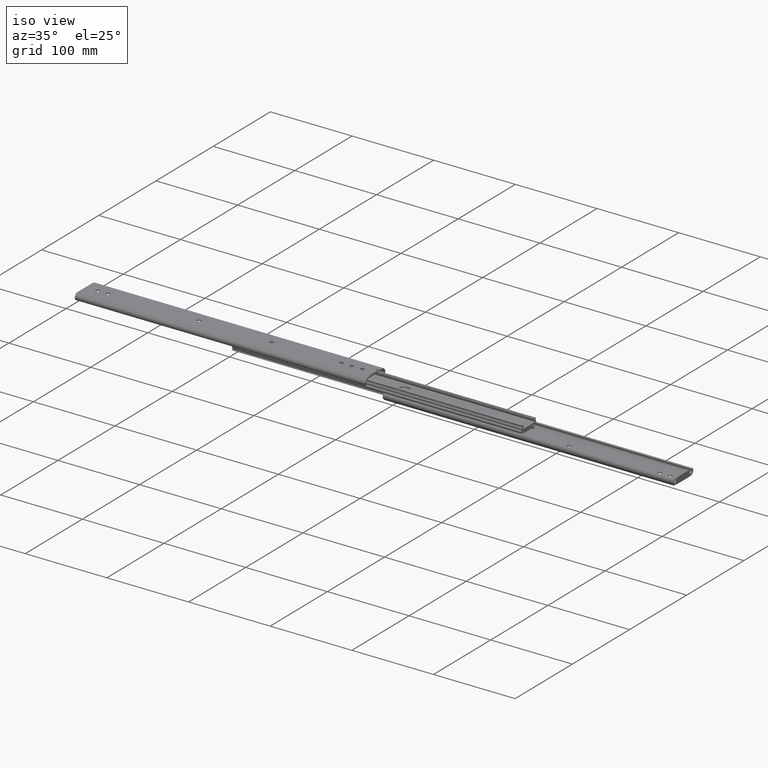
[diagram: clean part render]
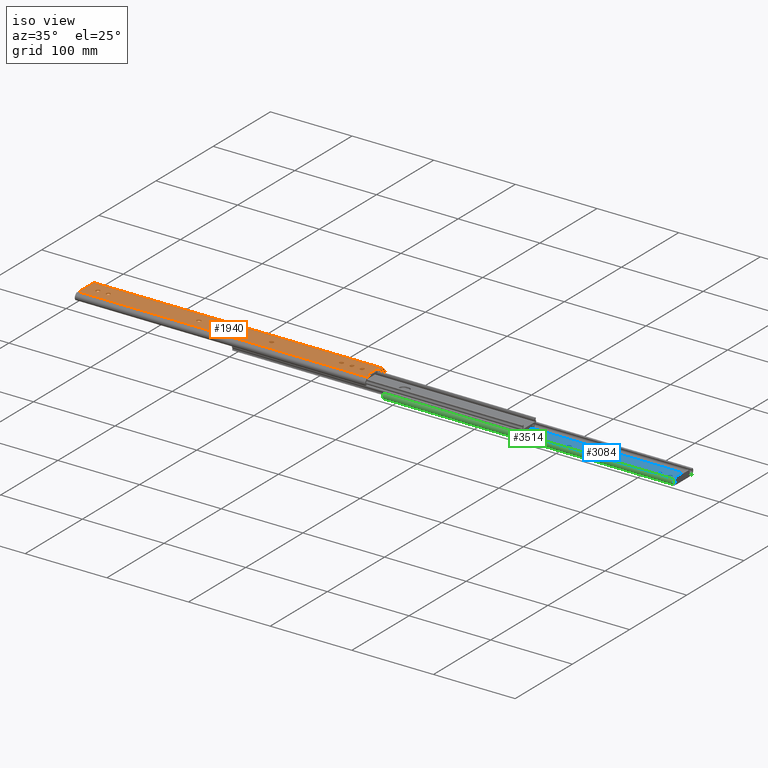
[diagram: same view with three faces highlighted in distinct colors, each labeled with its STEP entity id]
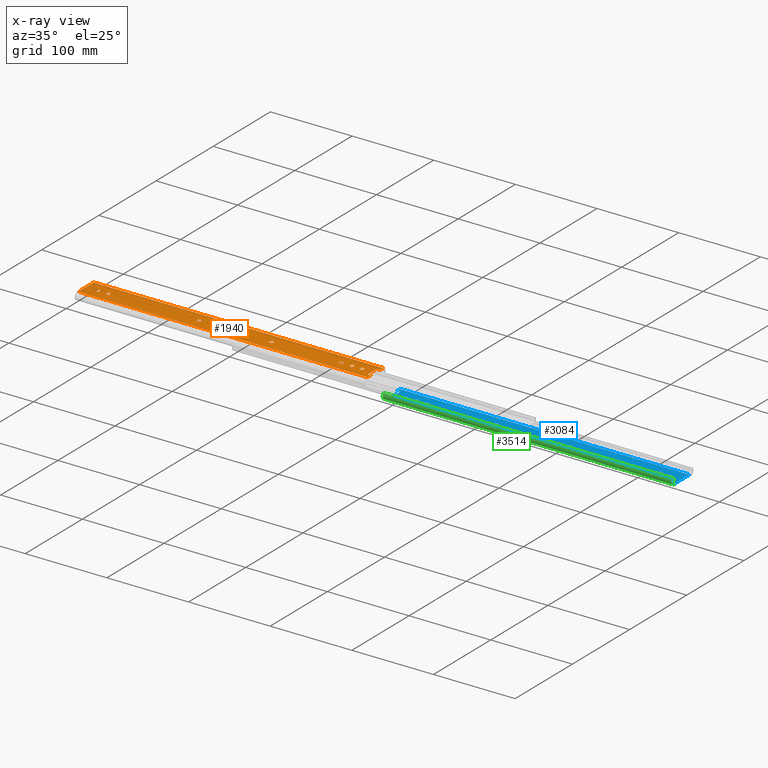
[diagram: x-ray of the same camera — body ghosted, the three highlighted faces saturated]
A machine part, iso view with three faces highlighted in distinct colors.
The next image is the same camera in x-ray (body ghosted, the three faces saturated) — at least one of them is partly hidden behind the body in this view.
Their STEP definitions:

[orange] entity #1940 — the highlighted planar face has unit normal (0, 0, -1).
#27 = VERTEX_POINT ( 'NONE', #2260 ) ;
#34 = EDGE_CURVE ( 'NONE', #4591, #3769, #3620, .T. ) ;
#38 = DIRECTION ( 'NONE',  ( 1.000000000000000000, 0.0000000000000000000, 0.0000000000000000000 ) ) ;
#41 = VERTEX_POINT ( 'NONE', #144 ) ;
#49 = EDGE_CURVE ( 'NONE', #2470, #41, #1738, .T. ) ;
#52 = ORIENTED_EDGE ( 'NONE', *, *, #3562, .T. ) ;
#82 = CARTESIAN_POINT ( 'NONE',  ( 40.89999999999999100, -2.250000000000001800, -4.792173602385929600E-014 ) ) ;
#103 = EDGE_LOOP ( 'NONE', ( #2430, #2544, #2094, #52 ) ) ;
#116 = CARTESIAN_POINT ( 'NONE',  ( 215.4999999999999400, 2.249999999999967600, -4.792173602385929600E-014 ) ) ;
#118 = CIRCLE ( 'NONE', #4613, 2.250000000000001800 ) ;
#122 = DIRECTION ( 'NONE',  ( 0.0000000000000000000, 0.0000000000000000000, 1.000000000000000000 ) ) ;
#132 = ORIENTED_EDGE ( 'NONE', *, *, #2049, .T. ) ;
#135 = LINE ( 'NONE', #768, #1920 ) ;
#142 = DIRECTION ( 'NONE',  ( 1.000000000000000000, 0.0000000000000000000, 0.0000000000000000000 ) ) ;
#144 = CARTESIAN_POINT ( 'NONE',  ( 18.15000000000000600, 0.3999999999999995800, -4.792173602385929600E-014 ) ) ;
#145 = EDGE_CURVE ( 'NONE', #3769, #2548, #910, .T. ) ;
#154 = DIRECTION ( 'NONE',  ( -0.0000000000000000000, 1.000000000000000000, -0.0000000000000000000 ) ) ;
#162 = CARTESIAN_POINT ( 'NONE',  ( 1.708415533803517000E-015, -8.000000000000000000, 7.958043946043602500E-014 ) ) ;
#179 = CARTESIAN_POINT ( 'NONE',  ( 216.3000000000000700, -2.250000000000032000, -1.348552589821912300E-014 ) ) ;
#187 = LINE ( 'NONE', #162, #2885 ) ;
#201 = DIRECTION ( 'NONE',  ( 1.000000000000000000, 0.0000000000000000000, 0.0000000000000000000 ) ) ;
#240 = LINE ( 'NONE', #1406, #1060 ) ;
#261 = VERTEX_POINT ( 'NONE', #3149 ) ;
#267 = VECTOR ( 'NONE', #1349, 1000.000000000000000 ) ;
#269 = LINE ( 'NONE', #504, #3929 ) ;
#271 = CARTESIAN_POINT ( 'NONE',  ( 13.64999999999999500, -0.3999999999999964700, -2.397426826350011400E-015 ) ) ;
#272 = CARTESIAN_POINT ( 'NONE',  ( 13.65000000000000000, 0.3999999999999968000, -4.792173602385929600E-014 ) ) ;
#287 = ORIENTED_EDGE ( 'NONE', *, *, #2496, .T. ) ;
#297 = DIRECTION ( 'NONE',  ( 1.000000000000000000, 0.0000000000000000000, 0.0000000000000000000 ) ) ;
#308 = EDGE_CURVE ( 'NONE', #4332, #2753, #2846, .T. ) ;
#345 = EDGE_CURVE ( 'NONE', #1980, #1074, #3303, .T. ) ;
#350 = VECTOR ( 'NONE', #1669, 1000.000000000000000 ) ;
#357 = VECTOR ( 'NONE', #1564, 1000.000000000000000 ) ;
#360 = FACE_OUTER_BOUND ( 'NONE', #380, .T. ) ;
#373 = AXIS2_PLACEMENT_3D ( 'NONE', #1333, #3314, #4492 ) ;
#380 = EDGE_LOOP ( 'NONE', ( #1472, #1113, #2171, #2444, #402, #1570, #3610, #1292, #2714, #1176, #2307, #557 ) ) ;
#386 = ORIENTED_EDGE ( 'NONE', *, *, #1433, .T. ) ;
#389 = AXIS2_PLACEMENT_3D ( 'NONE', #4409, #2274, #142 ) ;
#402 = ORIENTED_EDGE ( 'NONE', *, *, #4611, .T. ) ;
#406 = VECTOR ( 'NONE', #1453, 1000.000000000000000 ) ;
#414 = CIRCLE ( 'NONE', #1234, 2.249999999999998700 ) ;
#429 = EDGE_CURVE ( 'NONE', #3143, #4291, #2051, .T. ) ;
#446 = EDGE_CURVE ( 'NONE', #2548, #2888, #1921, .T. ) ;
#498 = EDGE_CURVE ( 'NONE', #1980, #4313, #2636, .T. ) ;
#504 = CARTESIAN_POINT ( 'NONE',  ( 40.89999999999999100, 2.249999999999998200, -4.792173602385929600E-014 ) ) ;
#515 = CIRCLE ( 'NONE', #2166, 2.250000000000001800 ) ;
#517 = CARTESIAN_POINT ( 'NONE',  ( 218.5499999999999800, 3.216173613727295700E-014, -4.792173602385929600E-014 ) ) ;
#523 = DIRECTION ( 'NONE',  ( 0.0000000000000000000, 0.0000000000000000000, 1.000000000000000000 ) ) ;
#529 = CIRCLE ( 'NONE', #3337, 2.250000000000029800 ) ;
#557 = ORIENTED_EDGE ( 'NONE', *, *, #2230, .T. ) ;
#582 = ORIENTED_EDGE ( 'NONE', *, *, #1809, .T. ) ;
#607 = CARTESIAN_POINT ( 'NONE',  ( 329.2500000000000600, -0.3999999999999233600, -4.792173602385929600E-014 ) ) ;
#609 = EDGE_CURVE ( 'NONE', #2888, #4591, #414, .T. ) ;
#611 = VERTEX_POINT ( 'NONE', #1897 ) ;
#613 = DIRECTION ( 'NONE',  ( 1.000000000000000000, 0.0000000000000000000, 0.0000000000000000000 ) ) ;
#625 = CARTESIAN_POINT ( 'NONE',  ( 215.4999999999999400, 2.249999999999967600, -4.792173602385929600E-014 ) ) ;
#627 = ORIENTED_EDGE ( 'NONE', *, *, #3643, .T. ) ;
#641 = CIRCLE ( 'NONE', #2546, 2.250000000000001800 ) ;
#656 = EDGE_CURVE ( 'NONE', #4313, #1888, #2893, .T. ) ;
#661 = AXIS2_PLACEMENT_3D ( 'NONE', #2906, #788, #3274 ) ;
#683 = LINE ( 'NONE', #1397, #1523 ) ;
#717 = CARTESIAN_POINT ( 'NONE',  ( 353.9220781010617400, -13.34999999999963900, 7.958043946043602500E-014 ) ) ;
#753 = CARTESIAN_POINT ( 'NONE',  ( 3.799999999999999400, 8.000000000000000000, 7.958043946043602500E-014 ) ) ;
#768 = CARTESIAN_POINT ( 'NONE',  ( 329.2500000000000600, 0.4000000000000162900, -4.792173602385929600E-014 ) ) ;
#779 = EDGE_CURVE ( 'NONE', #4152, #1888, #3197, .T. ) ;
#788 = DIRECTION ( 'NONE',  ( 0.0000000000000000000, 0.0000000000000000000, 1.000000000000000000 ) ) ;
#847 = VECTOR ( 'NONE', #1894, 1000.000000000000000 ) ;
#886 = ORIENTED_EDGE ( 'NONE', *, *, #4241, .T. ) ;
#898 = DIRECTION ( 'NONE',  ( 1.000000000000000000, 0.0000000000000000000, 0.0000000000000000000 ) ) ;
#903 = DIRECTION ( 'NONE',  ( 1.000000000000000000, 0.0000000000000000000, 0.0000000000000000000 ) ) ;
#904 = LINE ( 'NONE', #1243, #3624 ) ;
#908 = VERTEX_POINT ( 'NONE', #179 ) ;
#910 = CIRCLE ( 'NONE', #4605, 2.250000000000001800 ) ;
#921 = CIRCLE ( 'NONE', #3367, 2.250000000000029800 ) ;
#975 = DIRECTION ( 'NONE',  ( 0.0000000000000000000, 0.0000000000000000000, 1.000000000000000000 ) ) ;
#982 = EDGE_CURVE ( 'NONE', #2867, #3143, #3233, .T. ) ;
#983 = ORIENTED_EDGE ( 'NONE', *, *, #3441, .T. ) ;
#993 = VERTEX_POINT ( 'NONE', #1083 ) ;
#1019 = CIRCLE ( 'NONE', #1035, 2.250000000000001800 ) ;
#1027 = VECTOR ( 'NONE', #2296, 1000.000000000000000 ) ;
#1035 = AXIS2_PLACEMENT_3D ( 'NONE', #3110, #122, #2595 ) ;
#1060 = VECTOR ( 'NONE', #3534, 1000.000000000000000 ) ;
#1061 = DIRECTION ( 'NONE',  ( 0.0000000000000000000, 0.0000000000000000000, 1.000000000000000000 ) ) ;
#1074 = VERTEX_POINT ( 'NONE', #3266 ) ;
#1083 = CARTESIAN_POINT ( 'NONE',  ( 329.2500000000000600, 0.4000000000000162900, -4.792173602385929600E-014 ) ) ;
#1100 = ORIENTED_EDGE ( 'NONE', *, *, #446, .T. ) ;
#1113 = ORIENTED_EDGE ( 'NONE', *, *, #1506, .T. ) ;
#1115 = AXIS2_PLACEMENT_3D ( 'NONE', #3654, #1539, #4017 ) ;
#1120 = ORIENTED_EDGE ( 'NONE', *, *, #4593, .T. ) ;
#1149 = ORIENTED_EDGE ( 'NONE', *, *, #308, .T. ) ;
#1167 = EDGE_CURVE ( 'NONE', #4152, #2157, #683, .T. ) ;
#1176 = ORIENTED_EDGE ( 'NONE', *, *, #1167, .T. ) ;
#1198 = VERTEX_POINT ( 'NONE', #3604 ) ;
#1227 = EDGE_LOOP ( 'NONE', ( #3941, #2624, #132, #386, #2633 ) ) ;
#1234 = AXIS2_PLACEMENT_3D ( 'NONE', #2246, #3606, #1434 ) ;
#1236 = LINE ( 'NONE', #2944, #1244 ) ;
#1243 = CARTESIAN_POINT ( 'NONE',  ( 0.0000000000000000000, 0.0000000000000000000, 0.0000000000000000000 ) ) ;
#1244 = VECTOR ( 'NONE', #2985, 1000.000000000000000 ) ;
#1257 = ORIENTED_EDGE ( 'NONE', *, *, #49, .T. ) ;
#1268 = ORIENTED_EDGE ( 'NONE', *, *, #34, .T. ) ;
#1272 = CARTESIAN_POINT ( 'NONE',  ( 127.4000000000000200, 2.249999999999992900, -4.792173602385929600E-014 ) ) ;
#1292 = ORIENTED_EDGE ( 'NONE', *, *, #656, .T. ) ;
#1300 = CARTESIAN_POINT ( 'NONE',  ( 215.4999999999999400, -4.708513536440862100E-031, -4.792173602385929600E-014 ) ) ;
#1303 = CIRCLE ( 'NONE', #2866, 2.250000000000001800 ) ;
#1313 = FACE_BOUND ( 'NONE', #1765, .T. ) ;
#1315 = VERTEX_POINT ( 'NONE', #3642 ) ;
#1317 = CARTESIAN_POINT ( 'NONE',  ( 341.9500000000001000, 0.4000000000000177300, -4.792173602385929600E-014 ) ) ;
#1326 = DIRECTION ( 'NONE',  ( 1.000000000000000000, 0.0000000000000000000, 0.0000000000000000000 ) ) ;
#1333 = CARTESIAN_POINT ( 'NONE',  ( 327.0000000000000600, -0.3999999999999245800, -4.792173602385929600E-014 ) ) ;
#1341 = DIRECTION ( 'NONE',  ( 1.000000000000000000, 0.0000000000000000000, 0.0000000000000000000 ) ) ;
#1349 = DIRECTION ( 'NONE',  ( -1.000000000000000000, -0.0000000000000000000, -0.0000000000000000000 ) ) ;
#1351 = AXIS2_PLACEMENT_3D ( 'NONE', #4192, #2059, #4545 ) ;
#1396 = VERTEX_POINT ( 'NONE', #1272 ) ;
#1397 = CARTESIAN_POINT ( 'NONE',  ( 355.6000000000000200, -13.34999999999964600, 8.001412032943022700E-014 ) ) ;
#1406 = CARTESIAN_POINT ( 'NONE',  ( 337.4500000000000500, 0.4000000000000705200, -4.792173602385929600E-014 ) ) ;
#1418 = LINE ( 'NONE', #1890, #357 ) ;
#1420 = FACE_BOUND ( 'NONE', #103, .T. ) ;
#1433 = EDGE_CURVE ( 'NONE', #908, #3795, #515, .T. ) ;
#1434 = DIRECTION ( 'NONE',  ( 1.000000000000000000, 0.0000000000000000000, 0.0000000000000000000 ) ) ;
#1453 = DIRECTION ( 'NONE',  ( -1.355252715606880500E-016, 1.000000000000000000, -0.0000000000000000000 ) ) ;
#1461 = CARTESIAN_POINT ( 'NONE',  ( 355.1000000000007600, -12.79999999999970100, 7.958043946043602500E-014 ) ) ;
#1472 = ORIENTED_EDGE ( 'NONE', *, *, #3625, .T. ) ;
#1506 = EDGE_CURVE ( 'NONE', #4123, #2867, #1236, .T. ) ;
#1523 = VECTOR ( 'NONE', #2815, 1000.000000000000000 ) ;
#1529 = CARTESIAN_POINT ( 'NONE',  ( 324.7500000000000600, 0.4000000000000699100, -4.792173602385929600E-014 ) ) ;
#1535 = VERTEX_POINT ( 'NONE', #271 ) ;
#1539 = DIRECTION ( 'NONE',  ( 0.0000000000000000000, 0.0000000000000000000, 1.000000000000000000 ) ) ;
#1549 = CARTESIAN_POINT ( 'NONE',  ( 341.9500000000001000, -0.3999999999999219200, -4.792173602385929600E-014 ) ) ;
#1560 = VERTEX_POINT ( 'NONE', #1647 ) ;
#1564 = DIRECTION ( 'NONE',  ( 0.0000000000000000000, 1.000000000000000000, 5.993567065875081600E-015 ) ) ;
#1568 = CARTESIAN_POINT ( 'NONE',  ( 126.5999999999999900, 2.249999999999992900, -4.792173602385929600E-014 ) ) ;
#1570 = ORIENTED_EDGE ( 'NONE', *, *, #345, .F. ) ;
#1600 = EDGE_CURVE ( 'NONE', #1535, #2470, #4481, .T. ) ;
#1615 = ORIENTED_EDGE ( 'NONE', *, *, #1688, .T. ) ;
#1637 = ORIENTED_EDGE ( 'NONE', *, *, #145, .T. ) ;
#1647 = CARTESIAN_POINT ( 'NONE',  ( 129.6500000000000100, 1.230082464744604100E-014, -4.792173602385929600E-014 ) ) ;
#1665 = VERTEX_POINT ( 'NONE', #3731 ) ;
#1669 = DIRECTION ( 'NONE',  ( -0.0000000000000000000, 1.000000000000000000, -0.0000000000000000000 ) ) ;
#1688 = EDGE_CURVE ( 'NONE', #3965, #1535, #2466, .T. ) ;
#1690 = CARTESIAN_POINT ( 'NONE',  ( 13.65000000000000000, 0.3999999999999968000, -4.792173602385929600E-014 ) ) ;
#1700 = LINE ( 'NONE', #1994, #4315 ) ;
#1705 = VECTOR ( 'NONE', #1873, 1000.000000000000000 ) ;
#1716 = CARTESIAN_POINT ( 'NONE',  ( 43.95000000000000300, 3.337652803933819400E-015, -4.792173602385929600E-014 ) ) ;
#1729 = EDGE_CURVE ( 'NONE', #4514, #1198, #1303, .T. ) ;
#1730 = EDGE_CURVE ( 'NONE', #2207, #4565, #3186, .T. ) ;
#1732 = CARTESIAN_POINT ( 'NONE',  ( 30.85000000000000100, 0.4000000000000040700, -4.792173602385929600E-014 ) ) ;
#1735 = CIRCLE ( 'NONE', #1351, 2.250000000000029800 ) ;
#1738 = LINE ( 'NONE', #3309, #4583 ) ;
#1756 = LINE ( 'NONE', #1832, #2489 ) ;
#1765 = EDGE_LOOP ( 'NONE', ( #1257, #1120, #1615, #4027 ) ) ;
#1788 = VERTEX_POINT ( 'NONE', #2335 ) ;
#1792 = LINE ( 'NONE', #3863, #847 ) ;
#1804 = DIRECTION ( 'NONE',  ( 0.0000000000000000000, 0.0000000000000000000, 1.000000000000000000 ) ) ;
#1807 = AXIS2_PLACEMENT_3D ( 'NONE', #2085, #4571, #2441 ) ;
#1809 = EDGE_CURVE ( 'NONE', #1396, #4514, #1986, .T. ) ;
#1832 = CARTESIAN_POINT ( 'NONE',  ( 3.799999999999999400, 8.000000000000000000, 7.958043946043602500E-014 ) ) ;
#1840 = DIRECTION ( 'NONE',  ( -0.0000000000000000000, 1.000000000000000000, -0.0000000000000000000 ) ) ;
#1873 = DIRECTION ( 'NONE',  ( 0.0000000000000000000, -1.000000000000000000, 0.0000000000000000000 ) ) ;
#1888 = VERTEX_POINT ( 'NONE', #2363 ) ;
#1890 = CARTESIAN_POINT ( 'NONE',  ( 0.0000000000000000000, 0.0000000000000000000, 0.0000000000000000000 ) ) ;
#1894 = DIRECTION ( 'NONE',  ( 1.000000000000000000, 0.0000000000000000000, 0.0000000000000000000 ) ) ;
#1897 = CARTESIAN_POINT ( 'NONE',  ( 337.4500000000000500, 0.4000000000000705200, -4.792173602385929600E-014 ) ) ;
#1903 = DIRECTION ( 'NONE',  ( 0.0000000000000000000, 0.0000000000000000000, 1.000000000000000000 ) ) ;
#1913 = VERTEX_POINT ( 'NONE', #82 ) ;
#1918 = DIRECTION ( 'NONE',  ( 0.0000000000000000000, -1.000000000000000000, 0.0000000000000000000 ) ) ;
#1920 = VECTOR ( 'NONE', #1840, 1000.000000000000000 ) ;
#1921 = LINE ( 'NONE', #2410, #2967 ) ;
#1933 = AXIS2_PLACEMENT_3D ( 'NONE', #4178, #4437, #903 ) ;
#1940 = ADVANCED_FACE ( 'NONE', ( #4491, #2373, #4157, #1420, #3198, #2247, #1313, #360 ), #2279, .F. ) ;
#1942 = CARTESIAN_POINT ( 'NONE',  ( 354.0000000000000600, 12.10717967697326500, 7.958043946043602500E-014 ) ) ;
#1951 = CARTESIAN_POINT ( 'NONE',  ( 0.0000000000000000000, -13.34999999999964600, 8.001412032943022700E-014 ) ) ;
#1975 = DIRECTION ( 'NONE',  ( -1.000000000000000000, -0.0000000000000000000, -0.0000000000000000000 ) ) ;
#1980 = VERTEX_POINT ( 'NONE', #4191 ) ;
#1986 = LINE ( 'NONE', #1568, #3765 ) ;
#1994 = CARTESIAN_POINT ( 'NONE',  ( 40.89999999999999100, -2.250000000000001800, -4.792173602385929600E-014 ) ) ;
#2028 = CARTESIAN_POINT ( 'NONE',  ( 0.0000000000000000000, 8.000000000000000000, 7.958043946043602500E-014 ) ) ;
#2029 = CARTESIAN_POINT ( 'NONE',  ( 341.9500000000001000, 0.4000000000000177300, -4.792173602385929600E-014 ) ) ;
#2038 = CARTESIAN_POINT ( 'NONE',  ( 28.60000000000000100, -0.3999999999999991300, -4.792173602385929600E-014 ) ) ;
#2049 = EDGE_CURVE ( 'NONE', #1315, #908, #1792, .T. ) ;
#2051 = LINE ( 'NONE', #2028, #267 ) ;
#2059 = DIRECTION ( 'NONE',  ( 0.0000000000000000000, 0.0000000000000000000, 1.000000000000000000 ) ) ;
#2085 = CARTESIAN_POINT ( 'NONE',  ( 41.70000000000000300, 3.337652803933819400E-015, -4.792173602385929600E-014 ) ) ;
#2094 = ORIENTED_EDGE ( 'NONE', *, *, #2919, .T. ) ;
#2106 = EDGE_CURVE ( 'NONE', #1913, #2277, #1700, .T. ) ;
#2113 = EDGE_CURVE ( 'NONE', #4565, #1315, #641, .T. ) ;
#2131 = CARTESIAN_POINT ( 'NONE',  ( 3.800000000000001600, -6.999999999999999100, 7.958043946043602500E-014 ) ) ;
#2157 = VERTEX_POINT ( 'NONE', #1951 ) ;
#2166 = AXIS2_PLACEMENT_3D ( 'NONE', #4501, #4414, #2402 ) ;
#2171 = ORIENTED_EDGE ( 'NONE', *, *, #982, .T. ) ;
#2200 = VECTOR ( 'NONE', #3957, 1000.000000000000000 ) ;
#2207 = VERTEX_POINT ( 'NONE', #2440 ) ;
#2221 = CARTESIAN_POINT ( 'NONE',  ( 324.7500000000000600, -0.4000000000000691900, -2.397426826350447600E-015 ) ) ;
#2230 = EDGE_CURVE ( 'NONE', #3996, #1665, #187, .T. ) ;
#2246 = CARTESIAN_POINT ( 'NONE',  ( 28.59999999999999800, 0.4000000000000038000, -4.792173602385929600E-014 ) ) ;
#2247 = FACE_BOUND ( 'NONE', #3206, .T. ) ;
#2254 = EDGE_CURVE ( 'NONE', #2277, #2504, #1019, .T. ) ;
#2260 = CARTESIAN_POINT ( 'NONE',  ( 40.89999999999999100, 2.249999999999998200, -4.792173602385929600E-014 ) ) ;
#2274 = DIRECTION ( 'NONE',  ( 0.0000000000000000000, 0.0000000000000000000, 1.000000000000000000 ) ) ;
#2276 = DIRECTION ( 'NONE',  ( -0.0000000000000000000, 1.000000000000000000, -0.0000000000000000000 ) ) ;
#2277 = VERTEX_POINT ( 'NONE', #2625 ) ;
#2278 = CARTESIAN_POINT ( 'NONE',  ( 26.34999999999998400, -0.3999999999999968600, -2.397426826350013700E-015 ) ) ;
#2279 = PLANE ( 'NONE',  #2785 ) ;
#2288 = EDGE_CURVE ( 'NONE', #2157, #3996, #904, .T. ) ;
#2296 = DIRECTION ( 'NONE',  ( -0.0000000000000000000, -1.000000000000000000, -5.993567065875080900E-015 ) ) ;
#2307 = ORIENTED_EDGE ( 'NONE', *, *, #2288, .T. ) ;
#2324 = LINE ( 'NONE', #3595, #2200 ) ;
#2335 = CARTESIAN_POINT ( 'NONE',  ( 127.4000000000000200, -2.250000000000006700, -1.348552589821897300E-014 ) ) ;
#2358 = CIRCLE ( 'NONE', #1807, 2.250000000000001800 ) ;
#2363 = CARTESIAN_POINT ( 'NONE',  ( 354.0000000000000600, -12.10717967697326500, 7.958043946043602500E-014 ) ) ;
#2364 = LINE ( 'NONE', #1317, #350 ) ;
#2371 = CIRCLE ( 'NONE', #389, 2.250000000000001800 ) ;
#2373 = FACE_BOUND ( 'NONE', #3842, .T. ) ;
#2380 = VECTOR ( 'NONE', #2603, 1000.000000000000000 ) ;
#2397 = DIRECTION ( 'NONE',  ( 1.000000000000000000, 0.0000000000000000000, 0.0000000000000000000 ) ) ;
#2398 = ORIENTED_EDGE ( 'NONE', *, *, #1729, .T. ) ;
#2402 = DIRECTION ( 'NONE',  ( 1.000000000000000000, 0.0000000000000000000, 0.0000000000000000000 ) ) ;
#2410 = CARTESIAN_POINT ( 'NONE',  ( 30.85000000000000100, 0.4000000000000040700, -4.792173602385929600E-014 ) ) ;
#2416 = EDGE_CURVE ( 'NONE', #4577, #2455, #2364, .T. ) ;
#2428 = CARTESIAN_POINT ( 'NONE',  ( 0.0000000000000000000, -7.999999999999998200, -4.794853652700064100E-014 ) ) ;
#2430 = ORIENTED_EDGE ( 'NONE', *, *, #2416, .T. ) ;
#2436 = DIRECTION ( 'NONE',  ( 0.0000000000000000000, 0.0000000000000000000, 1.000000000000000000 ) ) ;
#2440 = CARTESIAN_POINT ( 'NONE',  ( 216.3000000000000700, 2.249999999999967600, -4.792173602385929600E-014 ) ) ;
#2441 = DIRECTION ( 'NONE',  ( 1.000000000000000000, 0.0000000000000000000, 0.0000000000000000000 ) ) ;
#2444 = ORIENTED_EDGE ( 'NONE', *, *, #429, .T. ) ;
#2455 = VERTEX_POINT ( 'NONE', #2029 ) ;
#2466 = LINE ( 'NONE', #272, #4145 ) ;
#2470 = VERTEX_POINT ( 'NONE', #3457 ) ;
#2489 = VECTOR ( 'NONE', #3970, 1000.000000000000000 ) ;
#2496 = EDGE_CURVE ( 'NONE', #1560, #1396, #118, .T. ) ;
#2504 = VERTEX_POINT ( 'NONE', #1716 ) ;
#2528 = DIRECTION ( 'NONE',  ( -0.0000000000000000000, -0.0000000000000000000, -1.000000000000000000 ) ) ;
#2544 = ORIENTED_EDGE ( 'NONE', *, *, #2784, .T. ) ;
#2546 = AXIS2_PLACEMENT_3D ( 'NONE', #1300, #975, #898 ) ;
#2548 = VERTEX_POINT ( 'NONE', #4238 ) ;
#2557 = CARTESIAN_POINT ( 'NONE',  ( 337.4500000000000500, -0.4000000000000696300, -2.397426826350450000E-015 ) ) ;
#2570 = VERTEX_POINT ( 'NONE', #3167 ) ;
#2573 = CARTESIAN_POINT ( 'NONE',  ( 0.0000000000000000000, 8.000000000000000000, 7.958043946043602500E-014 ) ) ;
#2579 = CARTESIAN_POINT ( 'NONE',  ( 126.5999999999999900, 2.249999999999992900, -4.792173602385929600E-014 ) ) ;
#2595 = DIRECTION ( 'NONE',  ( 1.000000000000000000, 0.0000000000000000000, 0.0000000000000000000 ) ) ;
#2603 = DIRECTION ( 'NONE',  ( -1.000000000000000000, -0.0000000000000000000, -0.0000000000000000000 ) ) ;
#2624 = ORIENTED_EDGE ( 'NONE', *, *, #2113, .T. ) ;
#2625 = CARTESIAN_POINT ( 'NONE',  ( 41.70000000000001700, -2.250000000000001800, -1.348552589821894200E-014 ) ) ;
#2629 = DIRECTION ( 'NONE',  ( -1.000000000000000000, -0.0000000000000000000, -0.0000000000000000000 ) ) ;
#2633 = ORIENTED_EDGE ( 'NONE', *, *, #3674, .T. ) ;
#2636 = CIRCLE ( 'NONE', #3948, 1.300000000000023400 ) ;
#2675 = VECTOR ( 'NONE', #1918, 1000.000000000000000 ) ;
#2692 = DIRECTION ( 'NONE',  ( 0.0000000000000000000, -1.000000000000000000, -5.993567065875080900E-015 ) ) ;
#2714 = ORIENTED_EDGE ( 'NONE', *, *, #779, .F. ) ;
#2726 = DIRECTION ( 'NONE',  ( 0.0000000000000000000, -1.000000000000000000, 0.0000000000000000000 ) ) ;
#2753 = VERTEX_POINT ( 'NONE', #607 ) ;
#2777 = ORIENTED_EDGE ( 'NONE', *, *, #3340, .T. ) ;
#2782 = DIRECTION ( 'NONE',  ( 0.0000000000000000000, -5.993567065875080900E-015, 1.000000000000000000 ) ) ;
#2784 = EDGE_CURVE ( 'NONE', #2455, #611, #1735, .T. ) ;
#2785 = AXIS2_PLACEMENT_3D ( 'NONE', #4467, #2782, #2692 ) ;
#2815 = DIRECTION ( 'NONE',  ( -1.000000000000000000, -0.0000000000000000000, -0.0000000000000000000 ) ) ;
#2846 = CIRCLE ( 'NONE', #373, 2.249999999999974200 ) ;
#2849 = EDGE_CURVE ( 'NONE', #2504, #2570, #2358, .T. ) ;
#2866 = AXIS2_PLACEMENT_3D ( 'NONE', #4469, #523, #201 ) ;
#2867 = VERTEX_POINT ( 'NONE', #3865 ) ;
#2869 = ORIENTED_EDGE ( 'NONE', *, *, #4301, .T. ) ;
#2885 = VECTOR ( 'NONE', #1341, 1000.000000000000000 ) ;
#2888 = VERTEX_POINT ( 'NONE', #1732 ) ;
#2893 = LINE ( 'NONE', #4451, #1027 ) ;
#2906 = CARTESIAN_POINT ( 'NONE',  ( 40.89999999999999100, 3.239681060002030200E-015, -4.792173602385929600E-014 ) ) ;
#2919 = EDGE_CURVE ( 'NONE', #611, #4471, #240, .T. ) ;
#2944 = CARTESIAN_POINT ( 'NONE',  ( 3.799999999999999400, 7.000000000000000000, 4.195496946112556400E-014 ) ) ;
#2967 = VECTOR ( 'NONE', #154, 1000.000000000000000 ) ;
#2976 = DIRECTION ( 'NONE',  ( 0.0000000000000000000, 0.0000000000000000000, 1.000000000000000000 ) ) ;
#2982 = DIRECTION ( 'NONE',  ( -1.000000000000000000, -0.0000000000000000000, -0.0000000000000000000 ) ) ;
#2985 = DIRECTION ( 'NONE',  ( -1.239088197126290800E-016, 1.000000000000000000, 5.993567065875080900E-015 ) ) ;
#3018 = ORIENTED_EDGE ( 'NONE', *, *, #2849, .T. ) ;
#3080 = ORIENTED_EDGE ( 'NONE', *, *, #609, .T. ) ;
#3110 = CARTESIAN_POINT ( 'NONE',  ( 41.70000000000000300, 3.337652803933819400E-015, -4.792173602385929600E-014 ) ) ;
#3143 = VERTEX_POINT ( 'NONE', #4069 ) ;
#3148 = ORIENTED_EDGE ( 'NONE', *, *, #4386, .T. ) ;
#3149 = CARTESIAN_POINT ( 'NONE',  ( 324.7500000000000600, 0.4000000000000699100, -4.792173602385929600E-014 ) ) ;
#3167 = CARTESIAN_POINT ( 'NONE',  ( 41.70000000000000300, 2.249999999999998200, -4.792173602385929600E-014 ) ) ;
#3186 = LINE ( 'NONE', #625, #4022 ) ;
#3197 = CIRCLE ( 'NONE', #3381, 1.300000000000023400 ) ;
#3198 = FACE_BOUND ( 'NONE', #3921, .T. ) ;
#3206 = EDGE_LOOP ( 'NONE', ( #1100, #3080, #1268, #1637 ) ) ;
#3207 = CARTESIAN_POINT ( 'NONE',  ( 127.4000000000000200, 1.230082464744604100E-014, -4.792173602385929600E-014 ) ) ;
#3231 = ORIENTED_EDGE ( 'NONE', *, *, #2106, .T. ) ;
#3233 = LINE ( 'NONE', #753, #406 ) ;
#3266 = CARTESIAN_POINT ( 'NONE',  ( 0.0000000000000000000, 13.34999999999964600, 8.001412032943022700E-014 ) ) ;
#3274 = DIRECTION ( 'NONE',  ( 1.000000000000000000, 0.0000000000000000000, 0.0000000000000000000 ) ) ;
#3303 = LINE ( 'NONE', #4505, #2380 ) ;
#3309 = CARTESIAN_POINT ( 'NONE',  ( 18.15000000000000600, 0.3999999999999995800, -4.792173602385929600E-014 ) ) ;
#3314 = DIRECTION ( 'NONE',  ( 0.0000000000000000000, 0.0000000000000000000, 1.000000000000000000 ) ) ;
#3321 = CARTESIAN_POINT ( 'NONE',  ( 26.35000000000000100, 0.3999999999999965800, -4.792173602385929600E-014 ) ) ;
#3337 = AXIS2_PLACEMENT_3D ( 'NONE', #3940, #1804, #4306 ) ;
#3340 = EDGE_CURVE ( 'NONE', #1788, #1560, #3714, .T. ) ;
#3367 = AXIS2_PLACEMENT_3D ( 'NONE', #4047, #1903, #4404 ) ;
#3381 = AXIS2_PLACEMENT_3D ( 'NONE', #1461, #2528, #38 ) ;
#3383 = ORIENTED_EDGE ( 'NONE', *, *, #2254, .T. ) ;
#3441 = EDGE_CURVE ( 'NONE', #1198, #1788, #2324, .T. ) ;
#3457 = CARTESIAN_POINT ( 'NONE',  ( 18.15000000000000600, -0.3999999999999995800, -4.792173602385929600E-014 ) ) ;
#3460 = AXIS2_PLACEMENT_3D ( 'NONE', #3207, #1061, #3554 ) ;
#3534 = DIRECTION ( 'NONE',  ( 0.0000000000000000000, -1.000000000000000000, 0.0000000000000000000 ) ) ;
#3554 = DIRECTION ( 'NONE',  ( 1.000000000000000000, 0.0000000000000000000, 0.0000000000000000000 ) ) ;
#3562 = EDGE_CURVE ( 'NONE', #4471, #4577, #921, .T. ) ;
#3582 = LINE ( 'NONE', #1529, #1705 ) ;
#3595 = CARTESIAN_POINT ( 'NONE',  ( 126.5999999999999900, -2.250000000000006700, -4.792173602385929600E-014 ) ) ;
#3604 = CARTESIAN_POINT ( 'NONE',  ( 126.5999999999999900, -2.250000000000006700, -4.792173602385929600E-014 ) ) ;
#3606 = DIRECTION ( 'NONE',  ( 0.0000000000000000000, 0.0000000000000000000, 1.000000000000000000 ) ) ;
#3610 = ORIENTED_EDGE ( 'NONE', *, *, #498, .T. ) ;
#3620 = LINE ( 'NONE', #4395, #2675 ) ;
#3624 = VECTOR ( 'NONE', #3737, 1000.000000000000000 ) ;
#3625 = EDGE_CURVE ( 'NONE', #1665, #4123, #1756, .T. ) ;
#3642 = CARTESIAN_POINT ( 'NONE',  ( 215.4999999999999400, -2.250000000000032000, -4.792173602385929600E-014 ) ) ;
#3643 = EDGE_CURVE ( 'NONE', #27, #1913, #4277, .T. ) ;
#3654 = CARTESIAN_POINT ( 'NONE',  ( 216.2999999999999800, 3.216173613727295700E-014, -4.792173602385929600E-014 ) ) ;
#3674 = EDGE_CURVE ( 'NONE', #3795, #2207, #3775, .T. ) ;
#3714 = CIRCLE ( 'NONE', #3460, 2.250000000000001800 ) ;
#3731 = CARTESIAN_POINT ( 'NONE',  ( 3.800000000000001600, -8.000000000000000000, 7.958043946043602500E-014 ) ) ;
#3737 = DIRECTION ( 'NONE',  ( 0.0000000000000000000, 1.000000000000000000, 5.993567065875081600E-015 ) ) ;
#3741 = EDGE_CURVE ( 'NONE', #2570, #27, #269, .T. ) ;
#3748 = CARTESIAN_POINT ( 'NONE',  ( 355.1000000000007600, 12.79999999999970100, 7.958043946043602500E-014 ) ) ;
#3765 = VECTOR ( 'NONE', #1975, 1000.000000000000000 ) ;
#3769 = VERTEX_POINT ( 'NONE', #2278 ) ;
#3775 = CIRCLE ( 'NONE', #1115, 2.250000000000001800 ) ;
#3795 = VERTEX_POINT ( 'NONE', #517 ) ;
#3842 = EDGE_LOOP ( 'NONE', ( #582, #2398, #983, #2777, #287 ) ) ;
#3863 = CARTESIAN_POINT ( 'NONE',  ( 215.4999999999999400, -2.250000000000032000, -4.792173602385929600E-014 ) ) ;
#3865 = CARTESIAN_POINT ( 'NONE',  ( 3.799999999999999400, 7.000000000000000000, 7.958043946043602500E-014 ) ) ;
#3921 = EDGE_LOOP ( 'NONE', ( #886, #3148, #2869, #1149 ) ) ;
#3929 = VECTOR ( 'NONE', #2982, 1000.000000000000000 ) ;
#3940 = CARTESIAN_POINT ( 'NONE',  ( 327.0000000000001100, 0.4000000000000159500, -4.792173602385929600E-014 ) ) ;
#3941 = ORIENTED_EDGE ( 'NONE', *, *, #1730, .T. ) ;
#3948 = AXIS2_PLACEMENT_3D ( 'NONE', #3748, #2976, #613 ) ;
#3957 = DIRECTION ( 'NONE',  ( 1.000000000000000000, 0.0000000000000000000, 0.0000000000000000000 ) ) ;
#3965 = VERTEX_POINT ( 'NONE', #1690 ) ;
#3970 = DIRECTION ( 'NONE',  ( -1.355252715606880500E-016, 1.000000000000000000, -0.0000000000000000000 ) ) ;
#3996 = VERTEX_POINT ( 'NONE', #2428 ) ;
#4017 = DIRECTION ( 'NONE',  ( 1.000000000000000000, 0.0000000000000000000, 0.0000000000000000000 ) ) ;
#4022 = VECTOR ( 'NONE', #2629, 1000.000000000000000 ) ;
#4027 = ORIENTED_EDGE ( 'NONE', *, *, #1600, .T. ) ;
#4047 = CARTESIAN_POINT ( 'NONE',  ( 339.7000000000000500, -0.3999999999999230300, -4.792173602385929600E-014 ) ) ;
#4069 = CARTESIAN_POINT ( 'NONE',  ( 3.799999999999999400, 8.000000000000000000, 7.958043946043602500E-014 ) ) ;
#4123 = VERTEX_POINT ( 'NONE', #2131 ) ;
#4145 = VECTOR ( 'NONE', #2726, 1000.000000000000000 ) ;
#4149 = EDGE_LOOP ( 'NONE', ( #4227, #627, #3231, #3383, #3018 ) ) ;
#4152 = VERTEX_POINT ( 'NONE', #717 ) ;
#4157 = FACE_BOUND ( 'NONE', #4149, .T. ) ;
#4178 = CARTESIAN_POINT ( 'NONE',  ( 15.90000000000000000, -0.3999999999999997400, -4.792173602385929600E-014 ) ) ;
#4191 = CARTESIAN_POINT ( 'NONE',  ( 353.9220781010617400, 13.34999999999963900, 7.958043946043602500E-014 ) ) ;
#4192 = CARTESIAN_POINT ( 'NONE',  ( 339.6999999999999900, 0.4000000000000174500, -4.792173602385929600E-014 ) ) ;
#4227 = ORIENTED_EDGE ( 'NONE', *, *, #3741, .T. ) ;
#4238 = CARTESIAN_POINT ( 'NONE',  ( 30.85000000000000100, -0.3999999999999980200, -4.792173602385929600E-014 ) ) ;
#4241 = EDGE_CURVE ( 'NONE', #2753, #993, #135, .T. ) ;
#4277 = CIRCLE ( 'NONE', #661, 2.250000000000001800 ) ;
#4291 = VERTEX_POINT ( 'NONE', #2573 ) ;
#4301 = EDGE_CURVE ( 'NONE', #261, #4332, #3582, .T. ) ;
#4306 = DIRECTION ( 'NONE',  ( 1.000000000000000000, 0.0000000000000000000, 0.0000000000000000000 ) ) ;
#4313 = VERTEX_POINT ( 'NONE', #1942 ) ;
#4315 = VECTOR ( 'NONE', #1326, 1000.000000000000000 ) ;
#4332 = VERTEX_POINT ( 'NONE', #2221 ) ;
#4386 = EDGE_CURVE ( 'NONE', #993, #261, #529, .T. ) ;
#4395 = CARTESIAN_POINT ( 'NONE',  ( 26.35000000000000100, 0.3999999999999965800, -4.792173602385929600E-014 ) ) ;
#4404 = DIRECTION ( 'NONE',  ( 1.000000000000000000, 0.0000000000000000000, 0.0000000000000000000 ) ) ;
#4409 = CARTESIAN_POINT ( 'NONE',  ( 15.89999999999999700, 0.3999999999999997400, -4.792173602385929600E-014 ) ) ;
#4414 = DIRECTION ( 'NONE',  ( 0.0000000000000000000, 0.0000000000000000000, 1.000000000000000000 ) ) ;
#4437 = DIRECTION ( 'NONE',  ( 0.0000000000000000000, 0.0000000000000000000, 1.000000000000000000 ) ) ;
#4451 = CARTESIAN_POINT ( 'NONE',  ( 354.0000000000000600, -11.49999999999984700, -6.892602125756251100E-014 ) ) ;
#4467 = CARTESIAN_POINT ( 'NONE',  ( 355.6000000000000200, 0.0000000000000000000, 0.0000000000000000000 ) ) ;
#4469 = CARTESIAN_POINT ( 'NONE',  ( 126.5999999999999900, 1.215386703154835400E-014, -4.792173602385929600E-014 ) ) ;
#4471 = VERTEX_POINT ( 'NONE', #2557 ) ;
#4481 = CIRCLE ( 'NONE', #1933, 2.250000000000001800 ) ;
#4491 = FACE_BOUND ( 'NONE', #1227, .T. ) ;
#4492 = DIRECTION ( 'NONE',  ( 1.000000000000000000, 0.0000000000000000000, 0.0000000000000000000 ) ) ;
#4501 = CARTESIAN_POINT ( 'NONE',  ( 216.2999999999999800, 3.216173613727295700E-014, -4.792173602385929600E-014 ) ) ;
#4505 = CARTESIAN_POINT ( 'NONE',  ( 355.6000000000000200, 13.34999999999964600, 8.001412032943022700E-014 ) ) ;
#4514 = VERTEX_POINT ( 'NONE', #2579 ) ;
#4524 = DIRECTION ( 'NONE',  ( 0.0000000000000000000, 0.0000000000000000000, 1.000000000000000000 ) ) ;
#4545 = DIRECTION ( 'NONE',  ( 1.000000000000000000, 0.0000000000000000000, 0.0000000000000000000 ) ) ;
#4563 = CARTESIAN_POINT ( 'NONE',  ( 127.4000000000000200, 1.230082464744604100E-014, -4.792173602385929600E-014 ) ) ;
#4565 = VERTEX_POINT ( 'NONE', #116 ) ;
#4571 = DIRECTION ( 'NONE',  ( 0.0000000000000000000, 0.0000000000000000000, 1.000000000000000000 ) ) ;
#4577 = VERTEX_POINT ( 'NONE', #1549 ) ;
#4583 = VECTOR ( 'NONE', #2276, 1000.000000000000000 ) ;
#4591 = VERTEX_POINT ( 'NONE', #3321 ) ;
#4593 = EDGE_CURVE ( 'NONE', #41, #3965, #2371, .T. ) ;
#4605 = AXIS2_PLACEMENT_3D ( 'NONE', #2038, #4524, #2397 ) ;
#4611 = EDGE_CURVE ( 'NONE', #4291, #1074, #1418, .T. ) ;
#4613 = AXIS2_PLACEMENT_3D ( 'NONE', #4563, #2436, #297 ) ;

[blue] entity #3084 — the highlighted planar face has unit normal (0, 0, -1).
#23 = VECTOR ( 'NONE', #4222, 1000.000000000000000 ) ;
#25 = ORIENTED_EDGE ( 'NONE', *, *, #1812, .F. ) ;
#30 = CARTESIAN_POINT ( 'NONE',  ( 1.708415533803517000E-015, -8.000000000000000000, 1.600000000000168200 ) ) ;
#31 = VERTEX_POINT ( 'NONE', #2656 ) ;
#50 = EDGE_CURVE ( 'NONE', #354, #2236, #1843, .T. ) ;
#67 = ORIENTED_EDGE ( 'NONE', *, *, #2351, .F. ) ;
#74 = LINE ( 'NONE', #1145, #1855 ) ;
#79 = LINE ( 'NONE', #2451, #696 ) ;
#114 = DIRECTION ( 'NONE',  ( 0.0000000000000000000, 0.0000000000000000000, -1.000000000000000000 ) ) ;
#115 = VERTEX_POINT ( 'NONE', #3796 ) ;
#121 = ORIENTED_EDGE ( 'NONE', *, *, #2537, .F. ) ;
#126 = DIRECTION ( 'NONE',  ( 1.000000000000000000, 0.0000000000000000000, 0.0000000000000000000 ) ) ;
#143 = AXIS2_PLACEMENT_3D ( 'NONE', #3782, #1645, #4139 ) ;
#155 = VERTEX_POINT ( 'NONE', #3107 ) ;
#156 = DIRECTION ( 'NONE',  ( 0.0000000000000000000, 0.0000000000000000000, 1.000000000000000000 ) ) ;
#157 = ORIENTED_EDGE ( 'NONE', *, *, #626, .F. ) ;
#163 = VERTEX_POINT ( 'NONE', #1337 ) ;
#211 = CARTESIAN_POINT ( 'NONE',  ( 355.1000000000007600, 12.79999999999970100, 1.600000000000168200 ) ) ;
#251 = CARTESIAN_POINT ( 'NONE',  ( 339.7000000000000500, -0.3999999999999230300, 1.600000000000168200 ) ) ;
#279 = VERTEX_POINT ( 'NONE', #642 ) ;
#298 = AXIS2_PLACEMENT_3D ( 'NONE', #1511, #4000, #1863 ) ;
#302 = VERTEX_POINT ( 'NONE', #3706 ) ;
#318 = VECTOR ( 'NONE', #2721, 1000.000000000000000 ) ;
#321 = LINE ( 'NONE', #3981, #3044 ) ;
#342 = CARTESIAN_POINT ( 'NONE',  ( 324.7500000000000600, 0.4000000000000704100, 1.600000000000168200 ) ) ;
#354 = VERTEX_POINT ( 'NONE', #3803 ) ;
#366 = VECTOR ( 'NONE', #375, 1000.000000000000000 ) ;
#375 = DIRECTION ( 'NONE',  ( -1.000000000000000000, -0.0000000000000000000, -0.0000000000000000000 ) ) ;
#388 = CARTESIAN_POINT ( 'NONE',  ( 355.6000000000000200, 13.34999999999963900, 1.600000000000168200 ) ) ;
#394 = EDGE_CURVE ( 'NONE', #2631, #2134, #2147, .T. ) ;
#396 = FACE_BOUND ( 'NONE', #3700, .T. ) ;
#423 = CIRCLE ( 'NONE', #1709, 2.250000000000001800 ) ;
#438 = AXIS2_PLACEMENT_3D ( 'NONE', #3185, #1052, #3540 ) ;
#444 = CARTESIAN_POINT ( 'NONE',  ( 126.5999999999999900, -2.250000000000007100, 1.600000000000168200 ) ) ;
#450 = CARTESIAN_POINT ( 'NONE',  ( 40.89999999999999100, -2.250000000000001800, 1.600000000000168200 ) ) ;
#496 = DIRECTION ( 'NONE',  ( 0.0000000000000000000, 0.0000000000000000000, 1.000000000000000000 ) ) ;
#551 = VERTEX_POINT ( 'NONE', #3352 ) ;
#570 = DIRECTION ( 'NONE',  ( -1.000000000000000000, 0.0000000000000000000, 0.0000000000000000000 ) ) ;
#578 = DIRECTION ( 'NONE',  ( -0.0000000000000000000, 1.000000000000000000, -0.0000000000000000000 ) ) ;
#579 = CIRCLE ( 'NONE', #3355, 2.250000000000029800 ) ;
#581 = VECTOR ( 'NONE', #915, 1000.000000000000000 ) ;
#591 = VERTEX_POINT ( 'NONE', #1518 ) ;
#594 = CIRCLE ( 'NONE', #3437, 1.300000000000023400 ) ;
#612 = ORIENTED_EDGE ( 'NONE', *, *, #2697, .F. ) ;
#617 = VERTEX_POINT ( 'NONE', #1603 ) ;
#626 = EDGE_CURVE ( 'NONE', #155, #4566, #3032, .T. ) ;
#631 = FACE_BOUND ( 'NONE', #1414, .T. ) ;
#642 = CARTESIAN_POINT ( 'NONE',  ( 0.0000000000000000000, 8.000000000000000000, 1.600000000000168200 ) ) ;
#663 = DIRECTION ( 'NONE',  ( 0.0000000000000000000, 0.0000000000000000000, 1.000000000000000000 ) ) ;
#676 = CARTESIAN_POINT ( 'NONE',  ( 3.799999999999999400, 8.000000000000000000, 1.600000000000168200 ) ) ;
#679 = AXIS2_PLACEMENT_3D ( 'NONE', #1577, #4071, #3673 ) ;
#684 = VECTOR ( 'NONE', #578, 1000.000000000000000 ) ;
#696 = VECTOR ( 'NONE', #4579, 1000.000000000000000 ) ;
#715 = EDGE_LOOP ( 'NONE', ( #2381, #2741, #4063, #1651 ) ) ;
#762 = VERTEX_POINT ( 'NONE', #30 ) ;
#772 = CARTESIAN_POINT ( 'NONE',  ( 355.6000000000000200, -11.49999999999982600, 1.600000000000168200 ) ) ;
#783 = VECTOR ( 'NONE', #4075, 1000.000000000000000 ) ;
#789 = VERTEX_POINT ( 'NONE', #444 ) ;
#800 = EDGE_CURVE ( 'NONE', #4518, #3579, #4034, .T. ) ;
#834 = CARTESIAN_POINT ( 'NONE',  ( 13.64999999999999900, -0.3999999999999964700, 1.600000000000168200 ) ) ;
#835 = LINE ( 'NONE', #2575, #1689 ) ;
#840 = CARTESIAN_POINT ( 'NONE',  ( 41.70000000000000300, -2.249999999999996400, 1.600000000000168200 ) ) ;
#851 = ORIENTED_EDGE ( 'NONE', *, *, #3564, .F. ) ;
#861 = DIRECTION ( 'NONE',  ( 1.000000000000000000, 0.0000000000000000000, 0.0000000000000000000 ) ) ;
#863 = EDGE_CURVE ( 'NONE', #934, #4454, #971, .T. ) ;
#868 = VECTOR ( 'NONE', #1041, 1000.000000000000000 ) ;
#900 = CARTESIAN_POINT ( 'NONE',  ( 1.708415533803517000E-015, -8.000000000000000000, 1.600000000000168200 ) ) ;
#915 = DIRECTION ( 'NONE',  ( -1.000000000000000000, -0.0000000000000000000, -0.0000000000000000000 ) ) ;
#917 = LINE ( 'NONE', #2083, #1752 ) ;
#931 = VERTEX_POINT ( 'NONE', #1261 ) ;
#934 = VERTEX_POINT ( 'NONE', #1714 ) ;
#942 = EDGE_LOOP ( 'NONE', ( #1935, #2502, #2219, #1079, #612 ) ) ;
#950 = ORIENTED_EDGE ( 'NONE', *, *, #3319, .T. ) ;
#961 = CIRCLE ( 'NONE', #298, 2.250000000000001800 ) ;
#965 = LINE ( 'NONE', #1022, #1694 ) ;
#971 = LINE ( 'NONE', #1761, #2744 ) ;
#988 = CIRCLE ( 'NONE', #438, 2.250000000000001800 ) ;
#1009 = CARTESIAN_POINT ( 'NONE',  ( 127.4000000000000200, 1.230082464744604100E-014, 1.600000000000168200 ) ) ;
#1022 = CARTESIAN_POINT ( 'NONE',  ( 18.15000000000000600, 0.3999999999999995800, 1.600000000000168200 ) ) ;
#1041 = DIRECTION ( 'NONE',  ( 0.0000000000000000000, -1.000000000000000000, 0.0000000000000000000 ) ) ;
#1052 = DIRECTION ( 'NONE',  ( 0.0000000000000000000, 0.0000000000000000000, 1.000000000000000000 ) ) ;
#1053 = CARTESIAN_POINT ( 'NONE',  ( 355.1000000000007600, -12.79999999999970100, 1.600000000000168200 ) ) ;
#1062 = VECTOR ( 'NONE', #2197, 1000.000000000000000 ) ;
#1079 = ORIENTED_EDGE ( 'NONE', *, *, #3324, .F. ) ;
#1101 = EDGE_LOOP ( 'NONE', ( #1298, #851, #3220, #2044 ) ) ;
#1108 = AXIS2_PLACEMENT_3D ( 'NONE', #4021, #2560, #2551 ) ;
#1110 = CIRCLE ( 'NONE', #143, 2.250000000000001800 ) ;
#1121 = VERTEX_POINT ( 'NONE', #4270 ) ;
#1144 = EDGE_LOOP ( 'NONE', ( #3454, #3657, #4168, #950, #2825, #4615, #3093, #4055, #1908, #3081, #4187, #2339, #2853, #121 ) ) ;
#1145 = CARTESIAN_POINT ( 'NONE',  ( 126.5999999999999900, -2.250000000000006700, 1.600000000000168200 ) ) ;
#1150 = CARTESIAN_POINT ( 'NONE',  ( 216.2999999999999800, 3.216173613727295700E-014, 1.600000000000168200 ) ) ;
#1153 = CARTESIAN_POINT ( 'NONE',  ( 216.3000000000000700, -2.249999999999967600, 1.600000000000168200 ) ) ;
#1173 = EDGE_CURVE ( 'NONE', #1185, #931, #1846, .T. ) ;
#1180 = VECTOR ( 'NONE', #2213, 1000.000000000000000 ) ;
#1181 = LINE ( 'NONE', #2968, #2040 ) ;
#1182 = EDGE_CURVE ( 'NONE', #4454, #1395, #2467, .T. ) ;
#1185 = VERTEX_POINT ( 'NONE', #4298 ) ;
#1194 = VERTEX_POINT ( 'NONE', #2172 ) ;
#1212 = ORIENTED_EDGE ( 'NONE', *, *, #1860, .F. ) ;
#1218 = ORIENTED_EDGE ( 'NONE', *, *, #2201, .F. ) ;
#1225 = CARTESIAN_POINT ( 'NONE',  ( 324.7500000000001100, -0.4000000000000691900, 1.600000000000168200 ) ) ;
#1231 = DIRECTION ( 'NONE',  ( 0.0000000000000000000, 0.0000000000000000000, 1.000000000000000000 ) ) ;
#1232 = CARTESIAN_POINT ( 'NONE',  ( 218.5499999999999800, 3.216173613727295700E-014, 1.600000000000168200 ) ) ;
#1246 = CIRCLE ( 'NONE', #4236, 2.250000000000001800 ) ;
#1259 = LINE ( 'NONE', #1660, #318 ) ;
#1261 = CARTESIAN_POINT ( 'NONE',  ( 355.1000000000012200, -11.49999999999969300, 1.600000000000168200 ) ) ;
#1269 = CARTESIAN_POINT ( 'NONE',  ( 3.800000000000001600, -6.999999999999999100, 1.600000000000168200 ) ) ;
#1273 = DIRECTION ( 'NONE',  ( 0.0000000000000000000, 0.0000000000000000000, 1.000000000000000000 ) ) ;
#1277 = EDGE_CURVE ( 'NONE', #163, #2143, #2032, .T. ) ;
#1298 = ORIENTED_EDGE ( 'NONE', *, *, #1587, .F. ) ;
#1301 = CARTESIAN_POINT ( 'NONE',  ( 215.4999999999999400, -2.250000000000031500, 1.600000000000168200 ) ) ;
#1302 = DIRECTION ( 'NONE',  ( 1.000000000000000000, 0.0000000000000000000, 0.0000000000000000000 ) ) ;
#1324 = CARTESIAN_POINT ( 'NONE',  ( 3.799999999999999400, 8.000000000000000000, 1.600000000000168200 ) ) ;
#1337 = CARTESIAN_POINT ( 'NONE',  ( 3.800000000000001600, -8.000000000000000000, 1.600000000000168200 ) ) ;
#1338 = ORIENTED_EDGE ( 'NONE', *, *, #3003, .F. ) ;
#1340 = AXIS2_PLACEMENT_3D ( 'NONE', #1150, #4522, #2353 ) ;
#1342 = CARTESIAN_POINT ( 'NONE',  ( 337.4500000000000500, -0.4000000000000696300, 1.600000000000168200 ) ) ;
#1357 = CARTESIAN_POINT ( 'NONE',  ( 0.0000000000000000000, 13.34999999999963900, 1.600000000000168200 ) ) ;
#1359 = FACE_BOUND ( 'NONE', #1101, .T. ) ;
#1366 = EDGE_LOOP ( 'NONE', ( #2983, #2148, #3331, #2077 ) ) ;
#1395 = VERTEX_POINT ( 'NONE', #4193 ) ;
#1414 = EDGE_LOOP ( 'NONE', ( #25, #2519, #157, #2740, #1957 ) ) ;
#1425 = DIRECTION ( 'NONE',  ( -1.000000000000000000, -6.672013369141445900E-015, 0.0000000000000000000 ) ) ;
#1446 = CARTESIAN_POINT ( 'NONE',  ( 28.59999999999999800, 0.4000000000000038000, 1.600000000000168200 ) ) ;
#1454 = CARTESIAN_POINT ( 'NONE',  ( 40.89999999999999100, 2.249999999999998200, 1.600000000000168200 ) ) ;
#1458 = AXIS2_PLACEMENT_3D ( 'NONE', #1925, #1972, #1302 ) ;
#1489 = DIRECTION ( 'NONE',  ( 1.000000000000000000, 0.0000000000000000000, 0.0000000000000000000 ) ) ;
#1491 = EDGE_CURVE ( 'NONE', #762, #163, #2300, .T. ) ;
#1492 = DIRECTION ( 'NONE',  ( 0.0000000000000000000, -1.000000000000000000, 0.0000000000000000000 ) ) ;
#1509 = DIRECTION ( 'NONE',  ( 0.0000000000000000000, 0.0000000000000000000, 1.000000000000000000 ) ) ;
#1511 = CARTESIAN_POINT ( 'NONE',  ( 215.4999999999999400, -4.708513536440862100E-031, 1.600000000000168200 ) ) ;
#1518 = CARTESIAN_POINT ( 'NONE',  ( 329.2500000000000600, 0.4000000000000162900, 1.600000000000168200 ) ) ;
#1567 = CARTESIAN_POINT ( 'NONE',  ( 337.4500000000000500, 0.4000000000000705200, 1.600000000000168200 ) ) ;
#1577 = CARTESIAN_POINT ( 'NONE',  ( 15.89999999999999700, 0.3999999999999997400, 1.600000000000168200 ) ) ;
#1578 = EDGE_CURVE ( 'NONE', #302, #934, #3622, .T. ) ;
#1581 = VERTEX_POINT ( 'NONE', #4094 ) ;
#1587 = EDGE_CURVE ( 'NONE', #1581, #2806, #1739, .T. ) ;
#1603 = CARTESIAN_POINT ( 'NONE',  ( 329.2500000000000600, -0.3999999999999233600, 1.600000000000168200 ) ) ;
#1633 = LINE ( 'NONE', #2000, #581 ) ;
#1645 = DIRECTION ( 'NONE',  ( 0.0000000000000000000, 0.0000000000000000000, 1.000000000000000000 ) ) ;
#1651 = ORIENTED_EDGE ( 'NONE', *, *, #3118, .F. ) ;
#1660 = CARTESIAN_POINT ( 'NONE',  ( 329.2500000000000600, 0.4000000000000162900, 1.600000000000168200 ) ) ;
#1674 = EDGE_CURVE ( 'NONE', #2806, #1121, #579, .T. ) ;
#1689 = VECTOR ( 'NONE', #3284, 1000.000000000000000 ) ;
#1694 = VECTOR ( 'NONE', #2079, 1000.000000000000000 ) ;
#1709 = AXIS2_PLACEMENT_3D ( 'NONE', #3626, #1509, #3995 ) ;
#1714 = CARTESIAN_POINT ( 'NONE',  ( 30.85000000000000100, -0.3999999999999980200, 1.600000000000168200 ) ) ;
#1720 = DIRECTION ( 'NONE',  ( -1.000000000000000000, 0.0000000000000000000, 0.0000000000000000000 ) ) ;
#1721 = CARTESIAN_POINT ( 'NONE',  ( 129.6500000000000100, 1.230082464744604100E-014, 1.600000000000168200 ) ) ;
#1731 = DIRECTION ( 'NONE',  ( 1.000000000000000000, 0.0000000000000000000, 0.0000000000000000000 ) ) ;
#1739 = LINE ( 'NONE', #1567, #783 ) ;
#1752 = VECTOR ( 'NONE', #3134, 1000.000000000000000 ) ;
#1761 = CARTESIAN_POINT ( 'NONE',  ( 30.85000000000000100, 0.4000000000000040700, 1.600000000000168200 ) ) ;
#1785 = LINE ( 'NONE', #3154, #3571 ) ;
#1812 = EDGE_CURVE ( 'NONE', #789, #2118, #74, .T. ) ;
#1820 = EDGE_CURVE ( 'NONE', #4566, #789, #3872, .T. ) ;
#1827 = CARTESIAN_POINT ( 'NONE',  ( 355.1000000000012200, 11.49999999999984700, 1.600000000000168200 ) ) ;
#1843 = CIRCLE ( 'NONE', #679, 2.250000000000001800 ) ;
#1846 = LINE ( 'NONE', #772, #4252 ) ;
#1855 = VECTOR ( 'NONE', #2229, 1000.000000000000000 ) ;
#1860 = EDGE_CURVE ( 'NONE', #591, #2605, #2690, .T. ) ;
#1863 = DIRECTION ( 'NONE',  ( 1.000000000000000000, 0.0000000000000000000, 0.0000000000000000000 ) ) ;
#1869 = EDGE_CURVE ( 'NONE', #2118, #2852, #3528, .T. ) ;
#1872 = VERTEX_POINT ( 'NONE', #2670 ) ;
#1889 = EDGE_CURVE ( 'NONE', #31, #2715, #2805, .T. ) ;
#1908 = ORIENTED_EDGE ( 'NONE', *, *, #1491, .F. ) ;
#1925 = CARTESIAN_POINT ( 'NONE',  ( 28.60000000000000100, -0.3999999999999991300, 1.600000000000168200 ) ) ;
#1935 = ORIENTED_EDGE ( 'NONE', *, *, #800, .F. ) ;
#1936 = CARTESIAN_POINT ( 'NONE',  ( 41.70000000000000300, 2.249999999999998200, 1.600000000000168200 ) ) ;
#1950 = DIRECTION ( 'NONE',  ( -1.355252715606880500E-016, 1.000000000000000000, -0.0000000000000000000 ) ) ;
#1955 = DIRECTION ( 'NONE',  ( 1.000000000000000000, 0.0000000000000000000, 0.0000000000000000000 ) ) ;
#1957 = ORIENTED_EDGE ( 'NONE', *, *, #1869, .F. ) ;
#1966 = EDGE_CURVE ( 'NONE', #4235, #1872, #3088, .T. ) ;
#1972 = DIRECTION ( 'NONE',  ( 0.0000000000000000000, 0.0000000000000000000, 1.000000000000000000 ) ) ;
#1977 = EDGE_CURVE ( 'NONE', #2605, #3603, #1181, .T. ) ;
#1992 = EDGE_CURVE ( 'NONE', #2852, #155, #2960, .T. ) ;
#2000 = CARTESIAN_POINT ( 'NONE',  ( 215.4999999999999400, 2.249999999999967600, 1.600000000000168200 ) ) ;
#2011 = DIRECTION ( 'NONE',  ( -1.000000000000000000, -0.0000000000000000000, -0.0000000000000000000 ) ) ;
#2018 = CARTESIAN_POINT ( 'NONE',  ( 341.9500000000001000, 0.4000000000000177300, 1.600000000000168200 ) ) ;
#2032 = LINE ( 'NONE', #676, #1062 ) ;
#2040 = VECTOR ( 'NONE', #2941, 1000.000000000000000 ) ;
#2044 = ORIENTED_EDGE ( 'NONE', *, *, #1674, .F. ) ;
#2069 = EDGE_CURVE ( 'NONE', #3943, #279, #4541, .T. ) ;
#2077 = ORIENTED_EDGE ( 'NONE', *, *, #1578, .F. ) ;
#2079 = DIRECTION ( 'NONE',  ( -0.0000000000000000000, 1.000000000000000000, -0.0000000000000000000 ) ) ;
#2083 = CARTESIAN_POINT ( 'NONE',  ( 0.0000000000000000000, 13.34999999999963900, 1.600000000000168200 ) ) ;
#2084 = CARTESIAN_POINT ( 'NONE',  ( 13.65000000000000000, 0.3999999999999968000, 1.600000000000168200 ) ) ;
#2092 = VECTOR ( 'NONE', #3831, 1000.000000000000000 ) ;
#2111 = VERTEX_POINT ( 'NONE', #1936 ) ;
#2118 = VERTEX_POINT ( 'NONE', #3501 ) ;
#2122 = CARTESIAN_POINT ( 'NONE',  ( 126.5999999999999900, 2.249999999999992900, 1.600000000000168200 ) ) ;
#2134 = VERTEX_POINT ( 'NONE', #4074 ) ;
#2138 = VECTOR ( 'NONE', #1720, 1000.000000000000000 ) ;
#2143 = VERTEX_POINT ( 'NONE', #1269 ) ;
#2147 = CIRCLE ( 'NONE', #1340, 2.250000000000001800 ) ;
#2148 = ORIENTED_EDGE ( 'NONE', *, *, #1182, .F. ) ;
#2172 = CARTESIAN_POINT ( 'NONE',  ( 3.799999999999999400, 7.000000000000000000, 1.600000000000168200 ) ) ;
#2177 = VECTOR ( 'NONE', #126, 1000.000000000000000 ) ;
#2196 = AXIS2_PLACEMENT_3D ( 'NONE', #2257, #114, #2606 ) ;
#2197 = DIRECTION ( 'NONE',  ( -1.355252715606880500E-016, 1.000000000000000000, -0.0000000000000000000 ) ) ;
#2201 = EDGE_CURVE ( 'NONE', #3035, #2631, #1246, .T. ) ;
#2211 = EDGE_CURVE ( 'NONE', #2236, #3734, #3025, .T. ) ;
#2213 = DIRECTION ( 'NONE',  ( 1.000000000000000000, 0.0000000000000000000, 0.0000000000000000000 ) ) ;
#2219 = ORIENTED_EDGE ( 'NONE', *, *, #4158, .F. ) ;
#2229 = DIRECTION ( 'NONE',  ( 1.000000000000000000, 0.0000000000000000000, 0.0000000000000000000 ) ) ;
#2236 = VERTEX_POINT ( 'NONE', #3840 ) ;
#2257 = CARTESIAN_POINT ( 'NONE',  ( 355.6000000000000200, 13.34999999999963900, 1.600000000000168200 ) ) ;
#2287 = CARTESIAN_POINT ( 'NONE',  ( 15.90000000000000000, -0.3999999999999997400, 1.600000000000168200 ) ) ;
#2293 = CARTESIAN_POINT ( 'NONE',  ( 3.799999999999999400, 8.000000000000000000, 1.600000000000168200 ) ) ;
#2294 = CARTESIAN_POINT ( 'NONE',  ( 0.0000000000000000000, 8.000000000000000000, 1.600000000000168200 ) ) ;
#2295 = FACE_BOUND ( 'NONE', #942, .T. ) ;
#2300 = LINE ( 'NONE', #900, #2177 ) ;
#2339 = ORIENTED_EDGE ( 'NONE', *, *, #4081, .F. ) ;
#2351 = EDGE_CURVE ( 'NONE', #2134, #115, #1633, .T. ) ;
#2353 = DIRECTION ( 'NONE',  ( 1.000000000000000000, 0.0000000000000000000, 0.0000000000000000000 ) ) ;
#2354 = CARTESIAN_POINT ( 'NONE',  ( 341.9500000000001000, 0.4000000000000177300, 1.600000000000168200 ) ) ;
#2365 = EDGE_CURVE ( 'NONE', #1121, #3255, #2468, .T. ) ;
#2381 = ORIENTED_EDGE ( 'NONE', *, *, #2211, .F. ) ;
#2388 = DIRECTION ( 'NONE',  ( 0.0000000000000000000, 0.0000000000000000000, 1.000000000000000000 ) ) ;
#2404 = CARTESIAN_POINT ( 'NONE',  ( 126.5999999999999900, 1.215386703154835400E-014, 1.600000000000168200 ) ) ;
#2451 = CARTESIAN_POINT ( 'NONE',  ( 3.799999999999999400, 8.000000000000000000, 1.600000000000168200 ) ) ;
#2467 = CIRCLE ( 'NONE', #2494, 2.249999999999998700 ) ;
#2468 = LINE ( 'NONE', #2354, #684 ) ;
#2494 = AXIS2_PLACEMENT_3D ( 'NONE', #1446, #4283, #861 ) ;
#2502 = ORIENTED_EDGE ( 'NONE', *, *, #3490, .F. ) ;
#2519 = ORIENTED_EDGE ( 'NONE', *, *, #1820, .F. ) ;
#2537 = EDGE_CURVE ( 'NONE', #1872, #1185, #1785, .T. ) ;
#2543 = EDGE_CURVE ( 'NONE', #4239, #354, #965, .T. ) ;
#2545 = CARTESIAN_POINT ( 'NONE',  ( 30.85000000000000100, 0.4000000000000040700, 1.600000000000168200 ) ) ;
#2551 = DIRECTION ( 'NONE',  ( 1.000000000000000000, 0.0000000000000000000, 0.0000000000000000000 ) ) ;
#2560 = DIRECTION ( 'NONE',  ( 0.0000000000000000000, 0.0000000000000000000, 1.000000000000000000 ) ) ;
#2575 = CARTESIAN_POINT ( 'NONE',  ( 215.4999999999999400, -2.250000000000032000, 1.600000000000168200 ) ) ;
#2602 = ORIENTED_EDGE ( 'NONE', *, *, #3784, .F. ) ;
#2605 = VERTEX_POINT ( 'NONE', #342 ) ;
#2606 = DIRECTION ( 'NONE',  ( -1.000000000000000000, 0.0000000000000000000, -0.0000000000000000000 ) ) ;
#2615 = CARTESIAN_POINT ( 'NONE',  ( 339.6999999999999900, 0.4000000000000174500, 1.600000000000168200 ) ) ;
#2631 = VERTEX_POINT ( 'NONE', #1232 ) ;
#2642 = DIRECTION ( 'NONE',  ( 1.000000000000000000, 0.0000000000000000000, 0.0000000000000000000 ) ) ;
#2645 = LINE ( 'NONE', #388, #4556 ) ;
#2656 = CARTESIAN_POINT ( 'NONE',  ( 353.9220781010617400, -13.34999999999963900, 1.600000000000168200 ) ) ;
#2666 = AXIS2_PLACEMENT_3D ( 'NONE', #2287, #156, #2642 ) ;
#2670 = CARTESIAN_POINT ( 'NONE',  ( 354.0000000000000600, 11.49999999999984700, 1.600000000000168200 ) ) ;
#2690 = CIRCLE ( 'NONE', #4562, 2.250000000000029800 ) ;
#2691 = DIRECTION ( 'NONE',  ( 0.0000000000000000000, 0.0000000000000000000, -1.000000000000000000 ) ) ;
#2697 = EDGE_CURVE ( 'NONE', #3579, #4268, #1110, .T. ) ;
#2699 = CIRCLE ( 'NONE', #3849, 2.250000000000029800 ) ;
#2715 = VERTEX_POINT ( 'NONE', #4500 ) ;
#2721 = DIRECTION ( 'NONE',  ( -0.0000000000000000000, 1.000000000000000000, -0.0000000000000000000 ) ) ;
#2740 = ORIENTED_EDGE ( 'NONE', *, *, #1992, .F. ) ;
#2741 = ORIENTED_EDGE ( 'NONE', *, *, #50, .F. ) ;
#2742 = VERTEX_POINT ( 'NONE', #1301 ) ;
#2744 = VECTOR ( 'NONE', #4416, 1000.000000000000000 ) ;
#2756 = CIRCLE ( 'NONE', #3268, 2.249999999999974200 ) ;
#2757 = CARTESIAN_POINT ( 'NONE',  ( 216.2999999999999800, 3.216173613727295700E-014, 1.600000000000168200 ) ) ;
#2770 = DIRECTION ( 'NONE',  ( 1.000000000000000000, 0.0000000000000000000, 0.0000000000000000000 ) ) ;
#2805 = LINE ( 'NONE', #3449, #4370 ) ;
#2806 = VERTEX_POINT ( 'NONE', #1342 ) ;
#2821 = VERTEX_POINT ( 'NONE', #1357 ) ;
#2825 = ORIENTED_EDGE ( 'NONE', *, *, #2069, .F. ) ;
#2852 = VERTEX_POINT ( 'NONE', #1721 ) ;
#2853 = ORIENTED_EDGE ( 'NONE', *, *, #1173, .F. ) ;
#2860 = LINE ( 'NONE', #3887, #868 ) ;
#2861 = DIRECTION ( 'NONE',  ( -1.000000000000000000, -0.0000000000000000000, -0.0000000000000000000 ) ) ;
#2879 = CARTESIAN_POINT ( 'NONE',  ( 18.15000000000000600, -0.3999999999999995800, 1.600000000000168200 ) ) ;
#2895 = CARTESIAN_POINT ( 'NONE',  ( 327.0000000000001100, 0.4000000000000159500, 1.600000000000168200 ) ) ;
#2903 = CARTESIAN_POINT ( 'NONE',  ( 43.95000000000000300, 3.337652803933819400E-015, 1.600000000000168200 ) ) ;
#2931 = DIRECTION ( 'NONE',  ( 1.000000000000000000, 0.0000000000000000000, 0.0000000000000000000 ) ) ;
#2941 = DIRECTION ( 'NONE',  ( 0.0000000000000000000, -1.000000000000000000, 0.0000000000000000000 ) ) ;
#2946 = DIRECTION ( 'NONE',  ( 0.0000000000000000000, 0.0000000000000000000, 1.000000000000000000 ) ) ;
#2956 = ORIENTED_EDGE ( 'NONE', *, *, #3925, .F. ) ;
#2960 = CIRCLE ( 'NONE', #3038, 2.250000000000001800 ) ;
#2964 = CARTESIAN_POINT ( 'NONE',  ( 126.5999999999999900, 2.249999999999992900, 1.600000000000168200 ) ) ;
#2968 = CARTESIAN_POINT ( 'NONE',  ( 324.7500000000000600, 0.4000000000000699100, 1.600000000000168200 ) ) ;
#2975 = DIRECTION ( 'NONE',  ( 1.000000000000000000, 0.0000000000000000000, 0.0000000000000000000 ) ) ;
#2983 = ORIENTED_EDGE ( 'NONE', *, *, #3488, .F. ) ;
#3003 = EDGE_CURVE ( 'NONE', #115, #2742, #961, .T. ) ;
#3025 = LINE ( 'NONE', #2084, #2092 ) ;
#3032 = LINE ( 'NONE', #2122, #3147 ) ;
#3033 = EDGE_CURVE ( 'NONE', #2742, #3035, #835, .T. ) ;
#3035 = VERTEX_POINT ( 'NONE', #1153 ) ;
#3038 = AXIS2_PLACEMENT_3D ( 'NONE', #1009, #3742, #1731 ) ;
#3044 = VECTOR ( 'NONE', #1492, 1000.000000000000000 ) ;
#3081 = ORIENTED_EDGE ( 'NONE', *, *, #4025, .T. ) ;
#3084 = ADVANCED_FACE ( 'NONE', ( #4199, #631, #2295, #1359, #396, #3225, #4082, #3131 ), #4033, .F. ) ;
#3088 = LINE ( 'NONE', #3768, #2138 ) ;
#3093 = ORIENTED_EDGE ( 'NONE', *, *, #4061, .F. ) ;
#3107 = CARTESIAN_POINT ( 'NONE',  ( 127.4000000000000200, 2.249999999999992900, 1.600000000000168200 ) ) ;
#3118 = EDGE_CURVE ( 'NONE', #3734, #4239, #4603, .T. ) ;
#3131 = FACE_OUTER_BOUND ( 'NONE', #1144, .T. ) ;
#3134 = DIRECTION ( 'NONE',  ( 0.0000000000000000000, -1.000000000000000000, 0.0000000000000000000 ) ) ;
#3147 = VECTOR ( 'NONE', #3345, 1000.000000000000000 ) ;
#3154 = CARTESIAN_POINT ( 'NONE',  ( 354.0000000000000600, 11.49999999999984700, 1.600000000000168200 ) ) ;
#3185 = CARTESIAN_POINT ( 'NONE',  ( 41.70000000000000300, 3.337652803933819400E-015, 1.600000000000168200 ) ) ;
#3202 = LINE ( 'NONE', #1454, #366 ) ;
#3220 = ORIENTED_EDGE ( 'NONE', *, *, #2365, .F. ) ;
#3225 = FACE_BOUND ( 'NONE', #1366, .T. ) ;
#3255 = VERTEX_POINT ( 'NONE', #2018 ) ;
#3268 = AXIS2_PLACEMENT_3D ( 'NONE', #3364, #1231, #3727 ) ;
#3284 = DIRECTION ( 'NONE',  ( 1.000000000000000000, 0.0000000000000000000, 0.0000000000000000000 ) ) ;
#3319 = EDGE_CURVE ( 'NONE', #2821, #279, #2860, .T. ) ;
#3324 = EDGE_CURVE ( 'NONE', #4268, #2111, #988, .T. ) ;
#3330 = DIRECTION ( 'NONE',  ( 1.000000000000000000, -0.0000000000000000000, -0.0000000000000000000 ) ) ;
#3331 = ORIENTED_EDGE ( 'NONE', *, *, #863, .F. ) ;
#3345 = DIRECTION ( 'NONE',  ( -1.000000000000000000, -0.0000000000000000000, -0.0000000000000000000 ) ) ;
#3352 = CARTESIAN_POINT ( 'NONE',  ( 40.89999999999999100, 2.249999999999998200, 1.600000000000168200 ) ) ;
#3355 = AXIS2_PLACEMENT_3D ( 'NONE', #251, #1273, #1489 ) ;
#3364 = CARTESIAN_POINT ( 'NONE',  ( 327.0000000000000600, -0.3999999999999245800, 1.600000000000168200 ) ) ;
#3394 = EDGE_CURVE ( 'NONE', #4617, #2821, #2645, .T. ) ;
#3437 = AXIS2_PLACEMENT_3D ( 'NONE', #1053, #3543, #1425 ) ;
#3449 = CARTESIAN_POINT ( 'NONE',  ( 355.6000000000000200, -13.34999999999963900, 1.600000000000168200 ) ) ;
#3454 = ORIENTED_EDGE ( 'NONE', *, *, #1966, .F. ) ;
#3480 = ORIENTED_EDGE ( 'NONE', *, *, #394, .F. ) ;
#3488 = EDGE_CURVE ( 'NONE', #1395, #302, #321, .T. ) ;
#3490 = EDGE_CURVE ( 'NONE', #551, #4518, #423, .T. ) ;
#3501 = CARTESIAN_POINT ( 'NONE',  ( 127.4000000000000200, -2.249999999999987600, 1.600000000000168200 ) ) ;
#3507 = DIRECTION ( 'NONE',  ( 0.0000000000000000000, -1.000000000000000000, 0.0000000000000000000 ) ) ;
#3528 = CIRCLE ( 'NONE', #1108, 2.250000000000001800 ) ;
#3540 = DIRECTION ( 'NONE',  ( 1.000000000000000000, 0.0000000000000000000, 0.0000000000000000000 ) ) ;
#3543 = DIRECTION ( 'NONE',  ( -0.0000000000000000000, -0.0000000000000000000, 1.000000000000000000 ) ) ;
#3564 = EDGE_CURVE ( 'NONE', #3255, #1581, #2699, .T. ) ;
#3571 = VECTOR ( 'NONE', #3507, 1000.000000000000000 ) ;
#3579 = VERTEX_POINT ( 'NONE', #840 ) ;
#3603 = VERTEX_POINT ( 'NONE', #1225 ) ;
#3622 = CIRCLE ( 'NONE', #1458, 2.250000000000001800 ) ;
#3626 = CARTESIAN_POINT ( 'NONE',  ( 40.89999999999999100, 3.239681060002030200E-015, 1.600000000000168200 ) ) ;
#3657 = ORIENTED_EDGE ( 'NONE', *, *, #3880, .T. ) ;
#3673 = DIRECTION ( 'NONE',  ( 1.000000000000000000, 0.0000000000000000000, 0.0000000000000000000 ) ) ;
#3700 = EDGE_LOOP ( 'NONE', ( #4538, #1212, #2956, #2602 ) ) ;
#3706 = CARTESIAN_POINT ( 'NONE',  ( 26.34999999999999800, -0.3999999999999968600, 1.600000000000168200 ) ) ;
#3710 = CARTESIAN_POINT ( 'NONE',  ( 353.9220781010617400, 13.34999999999963900, 1.600000000000168200 ) ) ;
#3727 = DIRECTION ( 'NONE',  ( 1.000000000000000000, 0.0000000000000000000, 0.0000000000000000000 ) ) ;
#3734 = VERTEX_POINT ( 'NONE', #834 ) ;
#3742 = DIRECTION ( 'NONE',  ( 0.0000000000000000000, 0.0000000000000000000, 1.000000000000000000 ) ) ;
#3768 = CARTESIAN_POINT ( 'NONE',  ( 355.6000000000000200, 11.49999999999984700, 1.600000000000168200 ) ) ;
#3771 = AXIS2_PLACEMENT_3D ( 'NONE', #211, #2691, #570 ) ;
#3782 = CARTESIAN_POINT ( 'NONE',  ( 41.70000000000000300, 3.337652803933819400E-015, 1.600000000000168200 ) ) ;
#3784 = EDGE_CURVE ( 'NONE', #3603, #617, #2756, .T. ) ;
#3796 = CARTESIAN_POINT ( 'NONE',  ( 215.4999999999999400, 2.249999999999967600, 1.600000000000168200 ) ) ;
#3801 = EDGE_CURVE ( 'NONE', #1194, #3943, #3830, .T. ) ;
#3803 = CARTESIAN_POINT ( 'NONE',  ( 18.15000000000000600, 0.3999999999999995800, 1.600000000000168200 ) ) ;
#3830 = LINE ( 'NONE', #2293, #4554 ) ;
#3831 = DIRECTION ( 'NONE',  ( 0.0000000000000000000, -1.000000000000000000, 0.0000000000000000000 ) ) ;
#3840 = CARTESIAN_POINT ( 'NONE',  ( 13.64999999999999500, 0.3999999999999975800, 1.600000000000168200 ) ) ;
#3849 = AXIS2_PLACEMENT_3D ( 'NONE', #2615, #496, #2975 ) ;
#3872 = CIRCLE ( 'NONE', #4084, 2.250000000000001800 ) ;
#3880 = EDGE_CURVE ( 'NONE', #4235, #4617, #4438, .T. ) ;
#3887 = CARTESIAN_POINT ( 'NONE',  ( 0.0000000000000000000, 13.34999999999963900, 1.600000000000168200 ) ) ;
#3925 = EDGE_CURVE ( 'NONE', #617, #591, #1259, .T. ) ;
#3943 = VERTEX_POINT ( 'NONE', #1324 ) ;
#3944 = CARTESIAN_POINT ( 'NONE',  ( 40.89999999999999100, -2.250000000000001800, 1.600000000000168200 ) ) ;
#3981 = CARTESIAN_POINT ( 'NONE',  ( 26.35000000000000100, 0.3999999999999965800, 1.600000000000168200 ) ) ;
#3995 = DIRECTION ( 'NONE',  ( 1.000000000000000000, 0.0000000000000000000, 0.0000000000000000000 ) ) ;
#4000 = DIRECTION ( 'NONE',  ( 0.0000000000000000000, 0.0000000000000000000, 1.000000000000000000 ) ) ;
#4021 = CARTESIAN_POINT ( 'NONE',  ( 127.4000000000000200, 1.230082464744604100E-014, 1.600000000000168200 ) ) ;
#4025 = EDGE_CURVE ( 'NONE', #762, #2715, #917, .T. ) ;
#4033 = PLANE ( 'NONE',  #2196 ) ;
#4034 = LINE ( 'NONE', #3944, #1180 ) ;
#4055 = ORIENTED_EDGE ( 'NONE', *, *, #1277, .F. ) ;
#4061 = EDGE_CURVE ( 'NONE', #2143, #1194, #79, .T. ) ;
#4063 = ORIENTED_EDGE ( 'NONE', *, *, #2543, .F. ) ;
#4071 = DIRECTION ( 'NONE',  ( 0.0000000000000000000, 0.0000000000000000000, 1.000000000000000000 ) ) ;
#4074 = CARTESIAN_POINT ( 'NONE',  ( 216.3000000000000700, 2.249999999999967600, 1.600000000000168200 ) ) ;
#4075 = DIRECTION ( 'NONE',  ( 0.0000000000000000000, -1.000000000000000000, 0.0000000000000000000 ) ) ;
#4081 = EDGE_CURVE ( 'NONE', #931, #31, #594, .T. ) ;
#4082 = FACE_BOUND ( 'NONE', #715, .T. ) ;
#4084 = AXIS2_PLACEMENT_3D ( 'NONE', #2404, #2388, #1955 ) ;
#4094 = CARTESIAN_POINT ( 'NONE',  ( 337.4500000000000500, 0.4000000000000704100, 1.600000000000168200 ) ) ;
#4139 = DIRECTION ( 'NONE',  ( 1.000000000000000000, 0.0000000000000000000, 0.0000000000000000000 ) ) ;
#4158 = EDGE_CURVE ( 'NONE', #2111, #551, #3202, .T. ) ;
#4168 = ORIENTED_EDGE ( 'NONE', *, *, #3394, .T. ) ;
#4187 = ORIENTED_EDGE ( 'NONE', *, *, #1889, .F. ) ;
#4193 = CARTESIAN_POINT ( 'NONE',  ( 26.34999999999998400, 0.3999999999999975800, 1.600000000000168200 ) ) ;
#4199 = FACE_BOUND ( 'NONE', #4564, .T. ) ;
#4222 = DIRECTION ( 'NONE',  ( -1.000000000000000000, -0.0000000000000000000, -0.0000000000000000000 ) ) ;
#4235 = VERTEX_POINT ( 'NONE', #1827 ) ;
#4236 = AXIS2_PLACEMENT_3D ( 'NONE', #2757, #663, #2770 ) ;
#4239 = VERTEX_POINT ( 'NONE', #2879 ) ;
#4252 = VECTOR ( 'NONE', #3330, 1000.000000000000000 ) ;
#4268 = VERTEX_POINT ( 'NONE', #2903 ) ;
#4270 = CARTESIAN_POINT ( 'NONE',  ( 341.9500000000001000, -0.3999999999999219200, 1.600000000000168200 ) ) ;
#4283 = DIRECTION ( 'NONE',  ( 0.0000000000000000000, 0.0000000000000000000, 1.000000000000000000 ) ) ;
#4298 = CARTESIAN_POINT ( 'NONE',  ( 354.0000000000000600, -11.49999999999982600, 1.600000000000168200 ) ) ;
#4370 = VECTOR ( 'NONE', #2011, 1000.000000000000000 ) ;
#4416 = DIRECTION ( 'NONE',  ( -0.0000000000000000000, 1.000000000000000000, -0.0000000000000000000 ) ) ;
#4438 = CIRCLE ( 'NONE', #3771, 1.300000000000023400 ) ;
#4454 = VERTEX_POINT ( 'NONE', #2545 ) ;
#4500 = CARTESIAN_POINT ( 'NONE',  ( 0.0000000000000000000, -13.34999999999963900, 1.600000000000168200 ) ) ;
#4518 = VERTEX_POINT ( 'NONE', #450 ) ;
#4522 = DIRECTION ( 'NONE',  ( 0.0000000000000000000, 0.0000000000000000000, 1.000000000000000000 ) ) ;
#4538 = ORIENTED_EDGE ( 'NONE', *, *, #1977, .F. ) ;
#4541 = LINE ( 'NONE', #2294, #23 ) ;
#4551 = ORIENTED_EDGE ( 'NONE', *, *, #3033, .F. ) ;
#4554 = VECTOR ( 'NONE', #1950, 1000.000000000000000 ) ;
#4556 = VECTOR ( 'NONE', #2861, 1000.000000000000000 ) ;
#4562 = AXIS2_PLACEMENT_3D ( 'NONE', #2895, #2946, #2931 ) ;
#4564 = EDGE_LOOP ( 'NONE', ( #4551, #1338, #67, #3480, #1218 ) ) ;
#4566 = VERTEX_POINT ( 'NONE', #2964 ) ;
#4579 = DIRECTION ( 'NONE',  ( -1.355252715606880500E-016, 1.000000000000000000, -0.0000000000000000000 ) ) ;
#4603 = CIRCLE ( 'NONE', #2666, 2.250000000000001800 ) ;
#4615 = ORIENTED_EDGE ( 'NONE', *, *, #3801, .F. ) ;
#4617 = VERTEX_POINT ( 'NONE', #3710 ) ;

[green] entity #3514 — the highlighted cylindrical surface (edge-blend (fillet) strip) has radius 4 mm, axis along (-1, -0, -0).
#86 = DIRECTION ( 'NONE',  ( -1.000000000000000000, -0.0000000000000000000, -0.0000000000000000000 ) ) ;
#100 = EDGE_LOOP ( 'NONE', ( #312, #4101, #3052, #2308 ) ) ;
#213 = DIRECTION ( 'NONE',  ( -1.000000000000000000, -0.0000000000000000000, -0.0000000000000000000 ) ) ;
#312 = ORIENTED_EDGE ( 'NONE', *, *, #743, .F. ) ;
#432 = CARTESIAN_POINT ( 'NONE',  ( 355.6000000000000200, -15.91053091109173300, 8.600000000000021000 ) ) ;
#743 = EDGE_CURVE ( 'NONE', #4001, #4062, #4368, .T. ) ;
#763 = DIRECTION ( 'NONE',  ( 0.0000000000000000000, 0.0000000000000000000, -1.000000000000000000 ) ) ;
#777 = VECTOR ( 'NONE', #4528, 1000.000000000000000 ) ;
#802 = CARTESIAN_POINT ( 'NONE',  ( 355.6000000000000200, -13.64999999999999700, 5.300000000000091300 ) ) ;
#853 = AXIS2_PLACEMENT_3D ( 'NONE', #3809, #1682, #4177 ) ;
#1133 = FACE_OUTER_BOUND ( 'NONE', #100, .T. ) ;
#1201 = CARTESIAN_POINT ( 'NONE',  ( 0.0000000000000000000, -13.64999999999999700, 5.300000000000091300 ) ) ;
#1327 = CARTESIAN_POINT ( 'NONE',  ( 355.6000000000000200, -16.48258451996917300, 2.475736390272456500 ) ) ;
#1363 = LINE ( 'NONE', #2333, #3012 ) ;
#1682 = DIRECTION ( 'NONE',  ( -1.000000000000000000, -0.0000000000000000000, -0.0000000000000000000 ) ) ;
#1839 = CIRCLE ( 'NONE', #853, 4.000000000000095900 ) ;
#2308 = ORIENTED_EDGE ( 'NONE', *, *, #2687, .T. ) ;
#2333 = CARTESIAN_POINT ( 'NONE',  ( 355.6000000000000200, -15.91053091109173300, 8.600000000000021000 ) ) ;
#2648 = AXIS2_PLACEMENT_3D ( 'NONE', #802, #86, #3278 ) ;
#2660 = AXIS2_PLACEMENT_3D ( 'NONE', #1201, #2930, #763 ) ;
#2687 = EDGE_CURVE ( 'NONE', #4256, #4062, #1363, .T. ) ;
#2761 = EDGE_CURVE ( 'NONE', #3813, #4256, #1839, .T. ) ;
#2768 = EDGE_CURVE ( 'NONE', #3813, #4001, #4582, .T. ) ;
#2769 = CARTESIAN_POINT ( 'NONE',  ( 0.0000000000000000000, -16.48258451996917300, 2.475736390272456500 ) ) ;
#2809 = CYLINDRICAL_SURFACE ( 'NONE', #2648, 4.000000000000095900 ) ;
#2930 = DIRECTION ( 'NONE',  ( -1.000000000000000000, -0.0000000000000000000, -0.0000000000000000000 ) ) ;
#3012 = VECTOR ( 'NONE', #213, 1000.000000000000000 ) ;
#3052 = ORIENTED_EDGE ( 'NONE', *, *, #2761, .T. ) ;
#3278 = DIRECTION ( 'NONE',  ( 0.0000000000000000000, 0.0000000000000000000, 1.000000000000000000 ) ) ;
#3514 = ADVANCED_FACE ( 'NONE', ( #1133 ), #2809, .T. ) ;
#3809 = CARTESIAN_POINT ( 'NONE',  ( 355.6000000000000200, -13.64999999999999700, 5.300000000000091300 ) ) ;
#3813 = VERTEX_POINT ( 'NONE', #4089 ) ;
#4001 = VERTEX_POINT ( 'NONE', #2769 ) ;
#4062 = VERTEX_POINT ( 'NONE', #4245 ) ;
#4089 = CARTESIAN_POINT ( 'NONE',  ( 355.6000000000000200, -16.48258451996917300, 2.475736390272456500 ) ) ;
#4101 = ORIENTED_EDGE ( 'NONE', *, *, #2768, .F. ) ;
#4177 = DIRECTION ( 'NONE',  ( 0.0000000000000000000, 0.0000000000000000000, -1.000000000000000000 ) ) ;
#4245 = CARTESIAN_POINT ( 'NONE',  ( 0.0000000000000000000, -15.91053091109173300, 8.600000000000021000 ) ) ;
#4256 = VERTEX_POINT ( 'NONE', #432 ) ;
#4368 = CIRCLE ( 'NONE', #2660, 4.000000000000095900 ) ;
#4528 = DIRECTION ( 'NONE',  ( -1.000000000000000000, -0.0000000000000000000, -0.0000000000000000000 ) ) ;
#4582 = LINE ( 'NONE', #1327, #777 ) ;